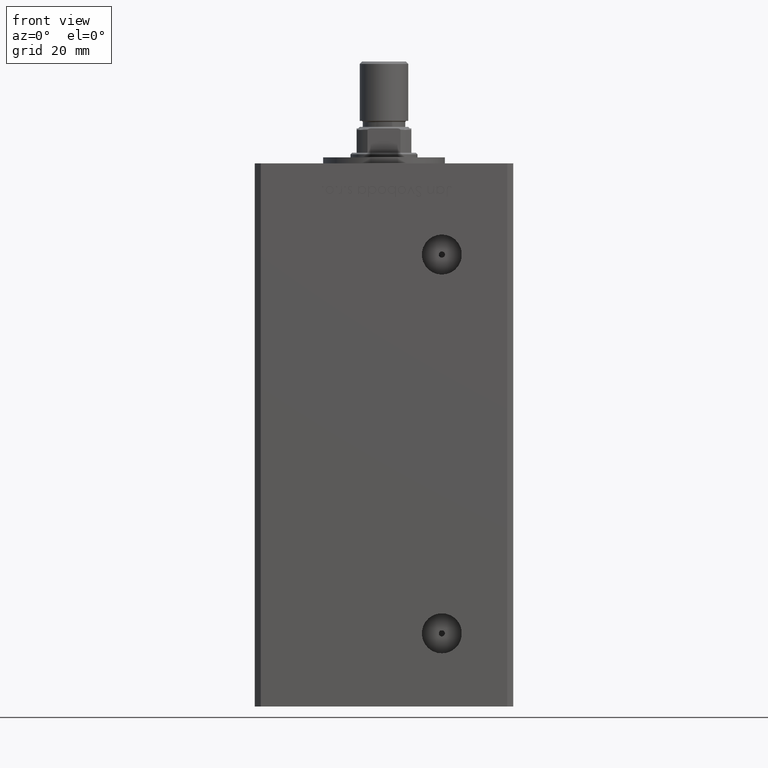
[diagram: clean part render]
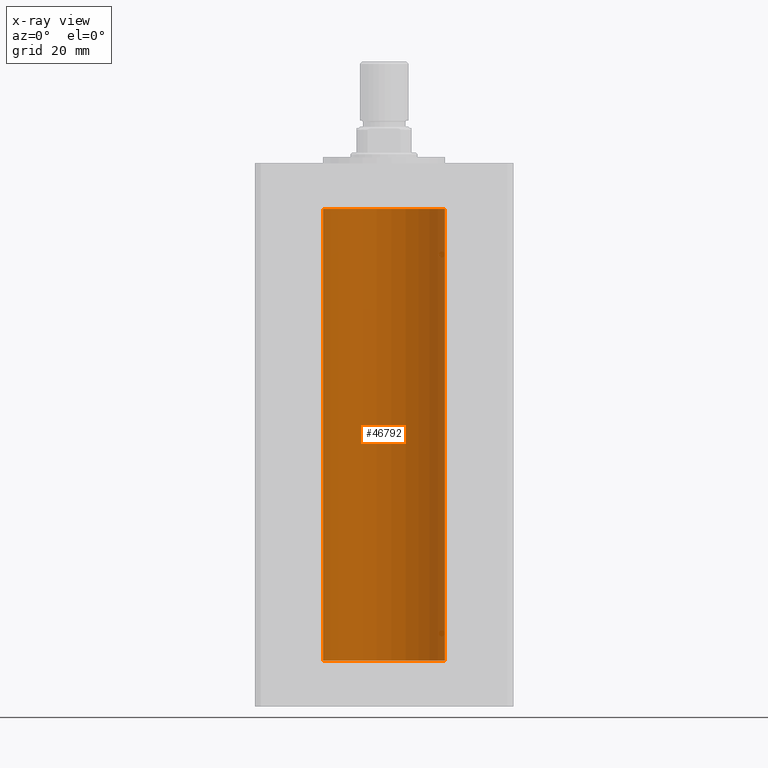
[diagram: x-ray — body ghosted, one internal face saturated and labeled with its STEP entity id]
A machine part, front view, then the same camera in x-ray: the body is ghosted and one INTERNAL B-rep face — a face not visible from any outside direction — is saturated and labeled: STEP entity #46792.
In plain terms, the highlighted cylindrical surface (partial cylindrical patch) has radius 20 mm, axis along (-0, -0, -1).
Its self-contained STEP definition (entity closure, byte-faithful):
#1146 = CARTESIAN_POINT ( 'NONE',  ( -20.00000000000000000, 0.000000000000000000, 148.5000000000000000 ) ) ;
#2546 = ORIENTED_EDGE ( 'NONE', *, *, #19771, .F. ) ;
#3344 = CARTESIAN_POINT ( 'NONE',  ( 20.00000000000000000, 2.449293598294706513E-15, 148.5000000000000000 ) ) ;
#4162 = ORIENTED_EDGE ( 'NONE', *, *, #17075, .T. ) ;
#5441 = VECTOR ( 'NONE', #13658, 1000.000000000000000 ) ;
#5721 = CARTESIAN_POINT ( 'NONE',  ( 0.000000000000000000, 0.000000000000000000, 148.5000000000000000 ) ) ;
#8907 = CYLINDRICAL_SURFACE ( 'NONE', #18285, 20.00000000000000000 ) ;
#10193 = AXIS2_PLACEMENT_3D ( 'NONE', #20636, #41419, #25409 ) ;
#11104 = VERTEX_POINT ( 'NONE', #39497 ) ;
#13503 = ORIENTED_EDGE ( 'NONE', *, *, #14004, .F. ) ;
#13658 = DIRECTION ( 'NONE',  ( -0.000000000000000000, -0.000000000000000000, -1.000000000000000000 ) ) ;
#14004 = EDGE_CURVE ( 'NONE', #38694, #38231, #43273, .T. ) ;
#14827 = ORIENTED_EDGE ( 'NONE', *, *, #42930, .T. ) ;
#17075 = EDGE_CURVE ( 'NONE', #11104, #27359, #17842, .T. ) ;
#17842 = CIRCLE ( 'NONE', #10193, 20.00000000000000000 ) ;
#18285 = AXIS2_PLACEMENT_3D ( 'NONE', #5721, #45942, #37412 ) ;
#19771 = EDGE_CURVE ( 'NONE', #11104, #38694, #26763, .T. ) ;
#20066 = CARTESIAN_POINT ( 'NONE',  ( -20.00000000000000000, 0.000000000000000000, 148.5000000000000000 ) ) ;
#20417 = EDGE_LOOP ( 'NONE', ( #2546, #4162, #14827, #13503 ) ) ;
#20636 = CARTESIAN_POINT ( 'NONE',  ( 0.000000000000000000, 0.000000000000000000, 148.5000000000000000 ) ) ;
#21139 = CARTESIAN_POINT ( 'NONE',  ( -20.00000000000000000, 0.000000000000000000, 0.000000000000000000 ) ) ;
#24722 = VECTOR ( 'NONE', #43035, 1000.000000000000000 ) ;
#25409 = DIRECTION ( 'NONE',  ( 1.000000000000000000, 0.000000000000000000, 0.000000000000000000 ) ) ;
#26385 = CARTESIAN_POINT ( 'NONE',  ( 20.00000000000000000, 2.449293598294706513E-15, 0.000000000000000000 ) ) ;
#26763 = LINE ( 'NONE', #3344, #24722 ) ;
#27359 = VERTEX_POINT ( 'NONE', #20066 ) ;
#29628 = LINE ( 'NONE', #1146, #5441 ) ;
#35564 = CARTESIAN_POINT ( 'NONE',  ( 0.000000000000000000, 0.000000000000000000, 0.000000000000000000 ) ) ;
#37412 = DIRECTION ( 'NONE',  ( -1.000000000000000000, 0.000000000000000000, 0.000000000000000000 ) ) ;
#38231 = VERTEX_POINT ( 'NONE', #21139 ) ;
#38694 = VERTEX_POINT ( 'NONE', #26385 ) ;
#39497 = CARTESIAN_POINT ( 'NONE',  ( 20.00000000000000000, 2.449293598294706513E-15, 148.5000000000000000 ) ) ;
#40086 = DIRECTION ( 'NONE',  ( -0.000000000000000000, 0.000000000000000000, 1.000000000000000000 ) ) ;
#41419 = DIRECTION ( 'NONE',  ( -0.000000000000000000, 0.000000000000000000, 1.000000000000000000 ) ) ;
#42209 = FACE_OUTER_BOUND ( 'NONE', #20417, .T. ) ;
#42930 = EDGE_CURVE ( 'NONE', #27359, #38231, #29628, .T. ) ;
#43035 = DIRECTION ( 'NONE',  ( -0.000000000000000000, -0.000000000000000000, -1.000000000000000000 ) ) ;
#43273 = CIRCLE ( 'NONE', #51793, 20.00000000000000000 ) ;
#45942 = DIRECTION ( 'NONE',  ( -0.000000000000000000, -0.000000000000000000, -1.000000000000000000 ) ) ;
#46792 = ADVANCED_FACE ( 'NONE', ( #42209 ), #8907, .F. ) ;
#51793 = AXIS2_PLACEMENT_3D ( 'NONE', #35564, #40086, #51817 ) ;
#51817 = DIRECTION ( 'NONE',  ( 1.000000000000000000, 0.000000000000000000, 0.000000000000000000 ) ) ;